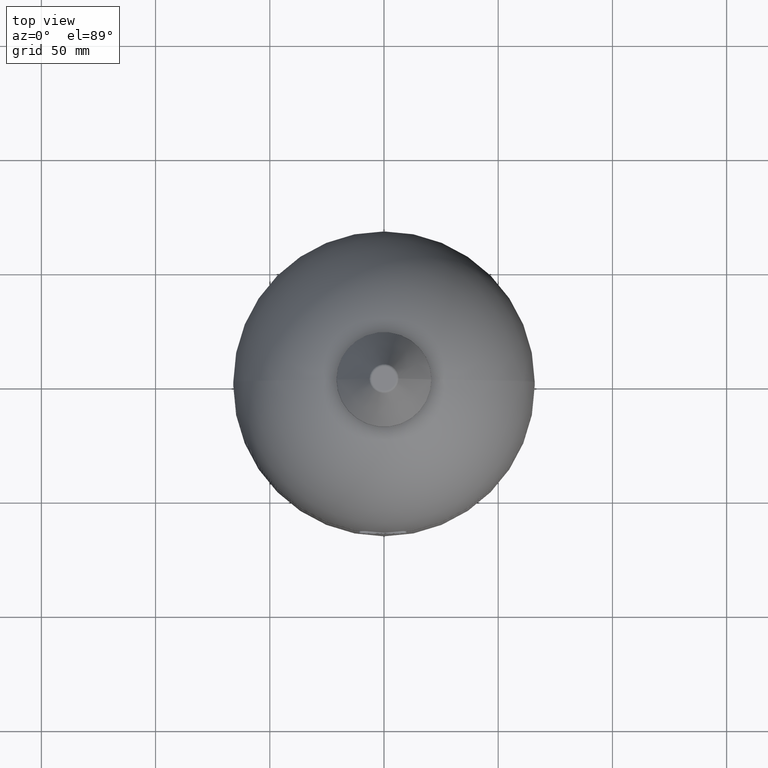
[diagram: clean part render]
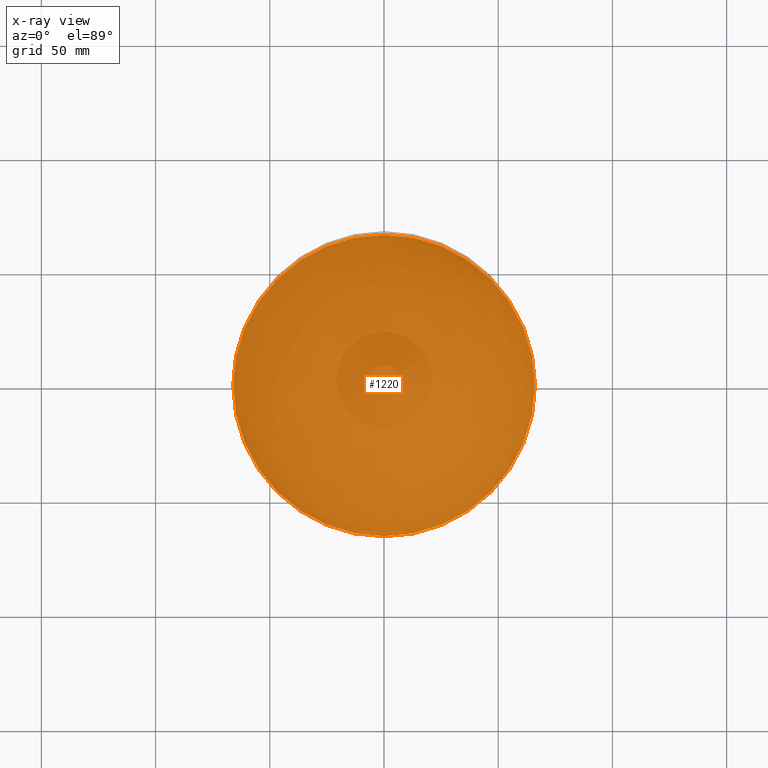
[diagram: x-ray — body ghosted, one internal face saturated and labeled with its STEP entity id]
A machine part, top view, then the same camera in x-ray: the body is ghosted and one INTERNAL B-rep face — a face not visible from any outside direction — is saturated and labeled: STEP entity #1220.
In plain terms, the highlighted planar face has unit normal (0, 0, -1).
Its self-contained STEP definition (entity closure, byte-faithful):
#1144=CARTESIAN_POINT('',(65.999999999999957,0.0,80.499999999999957));
#1145=VERTEX_POINT('',#1144);
#1161=CARTESIAN_POINT('',(-65.999999999999972,-8.082402E-015,80.499999999999957));
#1162=VERTEX_POINT('',#1161);
#1169=CARTESIAN_POINT('',(0.0,0.0,80.499999999999957));
#1170=DIRECTION('',(0.0,0.0,1.0));
#1171=DIRECTION('',(1.0,0.0,0.0));
#1172=AXIS2_PLACEMENT_3D('',#1169,#1170,#1171);
#1173=CIRCLE('',#1172,65.999999999999957);
#1174=EDGE_CURVE('',#1162,#1145,#1173,.T.);
#1205=CARTESIAN_POINT('',(32.999999999999979,0.0,80.499999999999972));
#1206=DIRECTION('',(0.0,0.0,-1.0));
#1207=DIRECTION('',(-1.0,0.0,0.0));
#1208=AXIS2_PLACEMENT_3D('',#1205,#1206,#1207);
#1209=PLANE('',#1208);
#1210=CARTESIAN_POINT('',(0.0,0.0,80.499999999999957));
#1211=DIRECTION('',(0.0,0.0,1.0));
#1212=DIRECTION('',(1.0,0.0,0.0));
#1213=AXIS2_PLACEMENT_3D('',#1210,#1211,#1212);
#1214=CIRCLE('',#1213,65.999999999999957);
#1215=EDGE_CURVE('',#1145,#1162,#1214,.T.);
#1216=ORIENTED_EDGE('',*,*,#1215,.F.);
#1217=ORIENTED_EDGE('',*,*,#1174,.F.);
#1218=EDGE_LOOP('',(#1216,#1217));
#1219=FACE_OUTER_BOUND('',#1218,.T.);
#1220=ADVANCED_FACE('',(#1219),#1209,.T.);